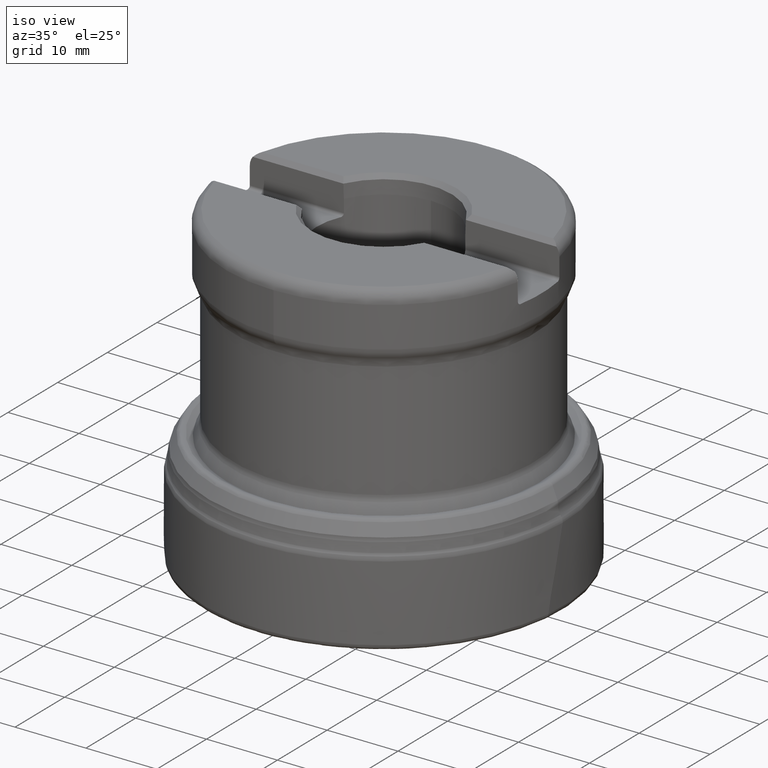
[diagram: clean part render]
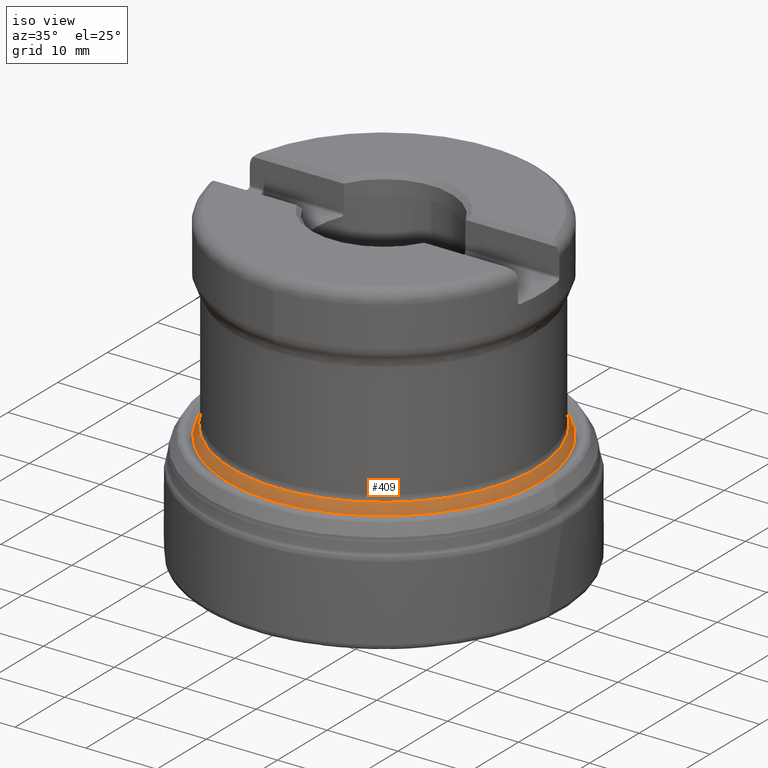
[diagram: same view with one face highlighted and labeled with its STEP entity id]
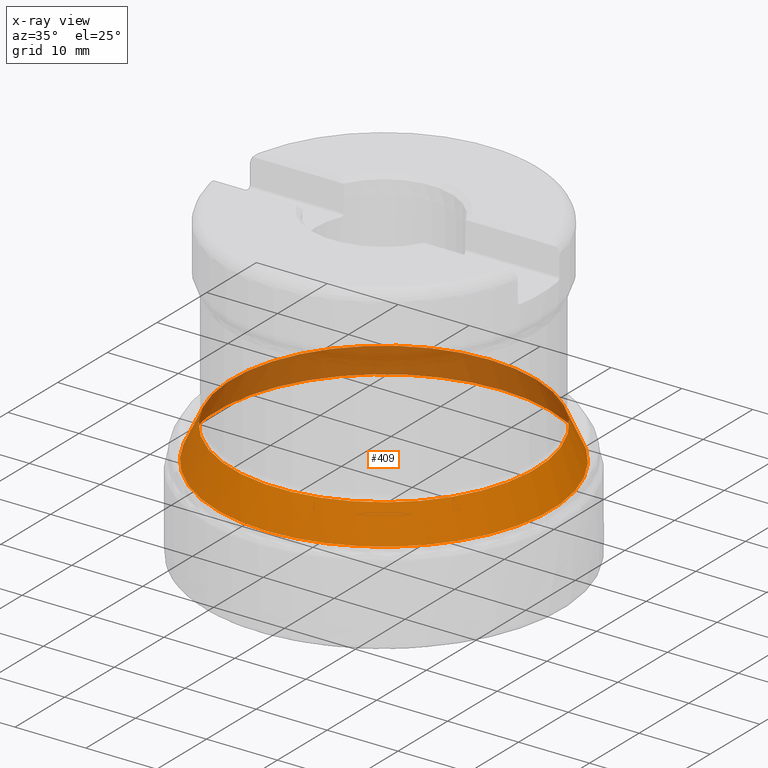
[diagram: x-ray of the same camera — body ghosted, the highlighted face saturated]
A machine part, iso view. The second image highlights one B-rep face of the part: STEP entity #409.
The next image is the same camera in x-ray: the body ghosted, the highlighted face saturated — about 33% of this face is hidden behind the body in this view.
In plain terms, the highlighted conical surface has half-angle 25 deg.
Its self-contained STEP definition (entity closure, byte-faithful):
#166=CONICAL_SURFACE('',#1492,21.225,25.);
#281=FACE_BOUND('',#560,.T.);
#282=FACE_BOUND('',#561,.T.);
#409=ADVANCED_FACE('',(#281,#282),#166,.T.);
#560=EDGE_LOOP('',(#757));
#561=EDGE_LOOP('',(#758));
#757=ORIENTED_EDGE('',*,*,#1191,.T.);
#758=ORIENTED_EDGE('',*,*,#1192,.T.);
#1062=VERTEX_POINT('',#2923);
#1063=VERTEX_POINT('',#2925);
#1191=EDGE_CURVE('',#1062,#1062,#1315,.T.);
#1192=EDGE_CURVE('',#1063,#1063,#1316,.T.);
#1315=CIRCLE('',#1490,23.5840973127698);
#1316=CIRCLE('',#1491,21.4123844259267);
#1490=AXIS2_PLACEMENT_3D('',#2922,#1691,#1692);
#1491=AXIS2_PLACEMENT_3D('',#2924,#1693,#1694);
#1492=AXIS2_PLACEMENT_3D('',#2926,#1695,#1696);
#1691=DIRECTION('',(0.,1.17145536458252E-15,1.));
#1692=DIRECTION('',(0.,-1.,1.17687674230383E-15));
#1693=DIRECTION('',(0.,-1.17145536458252E-15,-1.));
#1694=DIRECTION('',(0.,1.,-1.13420944536513E-15));
#1695=DIRECTION('',(0.,-1.17145536458252E-15,-1.));
#1696=DIRECTION('',(0.,1.,-1.22401005502754E-15));
#2922=CARTESIAN_POINT('',(0.,1.45946742583562E-14,12.4585833140619));
#2923=CARTESIAN_POINT('',(0.,-23.5840973127698,12.458583314062));
#2924=CARTESIAN_POINT('',(0.,2.00504386386609E-14,17.1158366292567));
#2925=CARTESIAN_POINT('',(0.,21.4123844259267,17.1158366292567));
#2926=CARTESIAN_POINT('',(0.,2.05211846947295E-14,17.5176838274523));